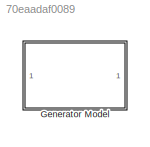
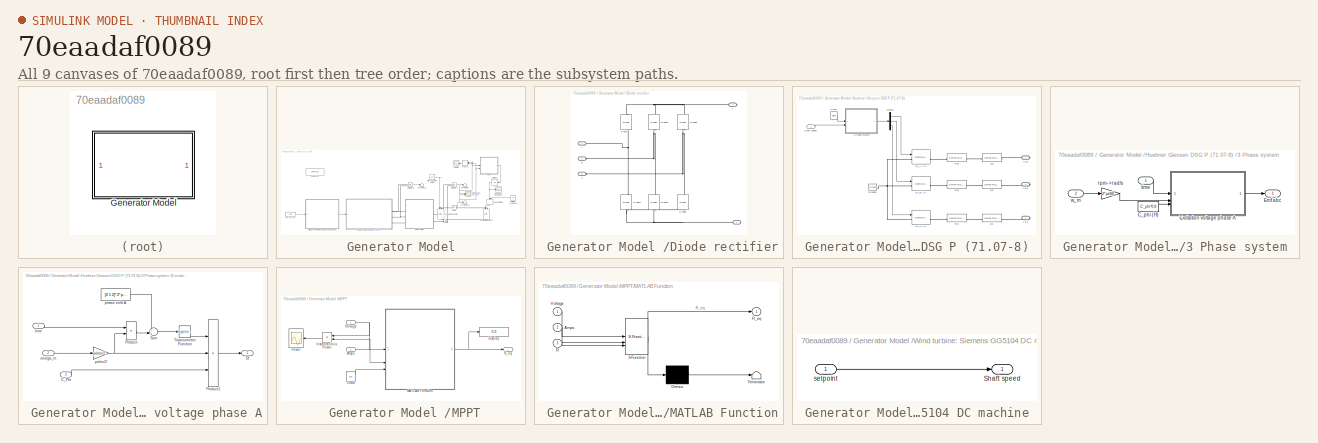
[diagram: thumbnail index - all 9 canvases of the model, root first then tree order]
MODEL slx_70eaadaf0089
KIND model
CONFIG AbsTol = auto
CONFIG EnableMultiTasking = on
CONFIG FixedStep = 1e-6
CONFIG InitFcn = Rs=0.42;                \nLs=0.96e-3;            \nC_phi=92.1952e-3;     \npoles=8;               \nRload=15;
CONFIG MaxStep = 1e-7
CONFIG MinStep = auto
CONFIG RelTol = 1e-5
CONFIG SampleTimeConstraint = Unconstrained
CONFIG SolverName = ode45
CONFIG StartTime = 0.0
CONFIG StopTime = 0.5
WORKSPACE source: mxarray member
WORKSPACE D: Simulink.Parameter (value not decoded)
WORKSPACE Power_previous: Simulink.Parameter (value not decoded)
WORKSPACE R_eq: Simulink.Parameter (value not decoded)
WORKSPACE direction: Simulink.Parameter (value not decoded)
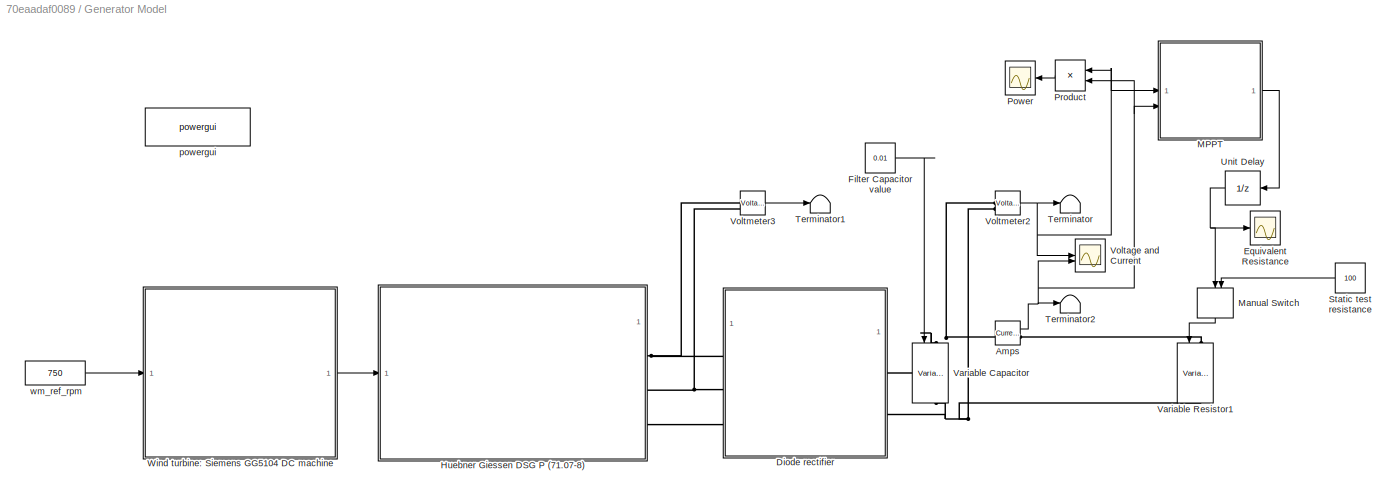
BLOCK [SubSystem]  Generator Model 
BLOCK [Reference]  Generator Model /Amps  REF=spsCurrentMeasurementLib/Current Measurement
  LibrarySourceBlock = sps_lib/Sensors and Measurements/Current Measurement
  SourceBlock = spsCurrentMeasurementLib/Current Measurement
  SourceType = Current Measurement
  UserDataPersistent = on
BLOCK [SubSystem]  Generator Model /Diode rectifier
BLOCK [PMIOPort]  Generator Model /Diode rectifier/+
  NameLocation = top
  Port = 2
  Side = Right
BLOCK [PMIOPort]  Generator Model /Diode rectifier/-
  NameLocation = top
  Port = 4
  Side = Right
BLOCK [PMIOPort]  Generator Model /Diode rectifier/A
  Side = Left
BLOCK [PMIOPort]  Generator Model /Diode rectifier/B
  Port = 3
  Side = Left
BLOCK [PMIOPort]  Generator Model /Diode rectifier/C
  Port = 5
  Side = Left
BLOCK [Reference]  Generator Model /Diode rectifier/Diode  REF=spsDiodeLib/Diode
  LibrarySourceBlock = sps_lib/Power Electronics/Diode
  NameLocation = right
  SourceBlock = spsDiodeLib/Diode
  SourceType = Diode
BLOCK [Reference]  Generator Model /Diode rectifier/Diode1  REF=spsDiodeLib/Diode
  LibrarySourceBlock = sps_lib/Power Electronics/Diode
  NameLocation = right
  SourceBlock = spsDiodeLib/Diode
  SourceType = Diode
BLOCK [Reference]  Generator Model /Diode rectifier/Diode2  REF=spsDiodeLib/Diode
  LibrarySourceBlock = sps_lib/Power Electronics/Diode
  NameLocation = right
  SourceBlock = spsDiodeLib/Diode
  SourceType = Diode
BLOCK [Reference]  Generator Model /Diode rectifier/Diode3  REF=spsDiodeLib/Diode
  LibrarySourceBlock = sps_lib/Power Electronics/Diode
  NameLocation = right
  SourceBlock = spsDiodeLib/Diode
  SourceType = Diode
BLOCK [Reference]  Generator Model /Diode rectifier/Diode4  REF=spsDiodeLib/Diode
  LibrarySourceBlock = sps_lib/Power Electronics/Diode
  NameLocation = right
  SourceBlock = spsDiodeLib/Diode
  SourceType = Diode
BLOCK [Reference]  Generator Model /Diode rectifier/Diode5  REF=spsDiodeLib/Diode
  LibrarySourceBlock = sps_lib/Power Electronics/Diode
  NameLocation = right
  SourceBlock = spsDiodeLib/Diode
  SourceType = Diode
BLOCK [Scope]  Generator Model /Equivalent Resistance
  Floating = off
  NumInputPorts = 1
  ScopeSpecificationString = Simulink.scopes.TimeScopeBlockCfg('CurrentConfiguration', extmgr.ConfigurationSet(extmgr.Configuration('Core','General UI',true),extmgr.Configuration('Core','Source UI',true),extmgr.Configuration('Sources','WiredSimulink',true),extmgr.Configuration('Visuals','Time Domain',true,'SerializedDisplays',{struct('MinYLimReal','-3.59637','MaxYLimReal','100','YLabelReal','','MinYLimMag','0.00000','MaxYLimM...<+1398ch>
BLOCK [Constant]  Generator Model /Filter Capacitor value
  Value = 0.01
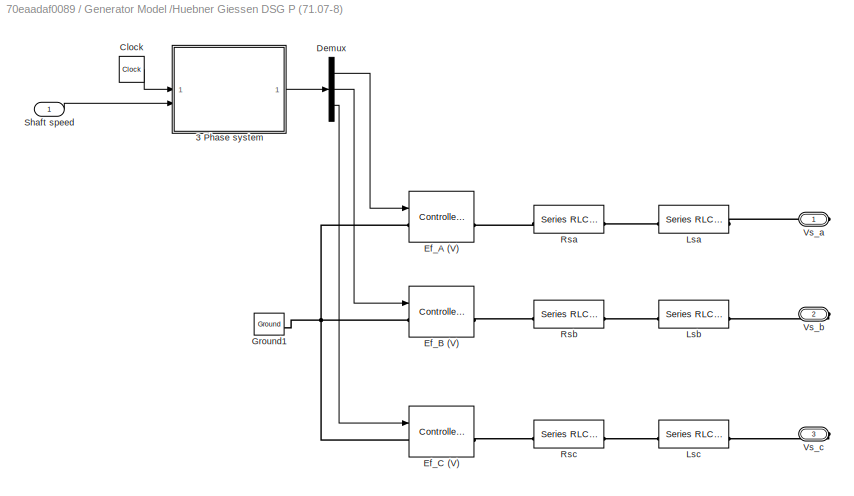
BLOCK [SubSystem]  Generator Model /Huebner Giessen DSG P (71.07-8) 
BLOCK [SubSystem]  Generator Model /Huebner Giessen DSG P (71.07-8) /3 Phase system 
BLOCK [Constant]  Generator Model /Huebner Giessen DSG P (71.07-8) /3 Phase system /C_phi (H)
  Value = C_phi*0.8
  VectorParams1D = off
BLOCK [Outport]  Generator Model /Huebner Giessen DSG P (71.07-8) /3 Phase system /Emf abc 
BLOCK [SubSystem]  Generator Model /Huebner Giessen DSG P (71.07-8) /3 Phase system /Excitation voltage phase A
BLOCK [Inport]  Generator Model /Huebner Giessen DSG P (71.07-8) /3 Phase system /Excitation voltage phase A/C_Phi
  Port = 3
BLOCK [Outport]  Generator Model /Huebner Giessen DSG P (71.07-8) /3 Phase system /Excitation voltage phase A/Ef
BLOCK [Product]  Generator Model /Huebner Giessen DSG P (71.07-8) /3 Phase system /Excitation voltage phase A/Product
  RndMeth = Zero
BLOCK [Product]  Generator Model /Huebner Giessen DSG P (71.07-8) /3 Phase system /Excitation voltage phase A/Product1
  Inputs = 3
  RndMeth = Zero
BLOCK [Sum]  Generator Model /Huebner Giessen DSG P (71.07-8) /3 Phase system /Excitation voltage phase A/Sum
  Inputs = ++|
BLOCK [Trigonometry]  Generator Model /Huebner Giessen DSG P (71.07-8) /3 Phase system /Excitation voltage phase A/Trigonometric Function
BLOCK [Inport]  Generator Model /Huebner Giessen DSG P (71.07-8) /3 Phase system /Excitation voltage phase A/omega_m
  Port = 2
BLOCK [Constant]  Generator Model /Huebner Giessen DSG P (71.07-8) /3 Phase system /Excitation voltage phase A/phase shift A
  Value = [0 1 2]*2*pi/3
BLOCK [Gain]  Generator Model /Huebner Giessen DSG P (71.07-8) /3 Phase system /Excitation voltage phase A/poles//2
  Gain = poles/2
BLOCK [Inport]  Generator Model /Huebner Giessen DSG P (71.07-8) /3 Phase system /Excitation voltage phase A/time
BLOCK [Gain]  Generator Model /Huebner Giessen DSG P (71.07-8) /3 Phase system /rpm->rad//s
  Gain = 2*pi/60
BLOCK [Inport]  Generator Model /Huebner Giessen DSG P (71.07-8) /3 Phase system /time
BLOCK [Inport]  Generator Model /Huebner Giessen DSG P (71.07-8) /3 Phase system /w_m
  Port = 2
BLOCK [Clock]  Generator Model /Huebner Giessen DSG P (71.07-8) /Clock
BLOCK [Demux]  Generator Model /Huebner Giessen DSG P (71.07-8) /Demux
  Outputs = 3
BLOCK [Reference]  Generator Model /Huebner Giessen DSG P (71.07-8) /Ef_A (V)  REF=spsControlledVoltageSourceLib/Controlled Voltage Source
  LibrarySourceBlock = sps_lib/Sources/Controlled Voltage Source
  SourceBlock = spsControlledVoltageSourceLib/Controlled Voltage Source
  SourceType = Controlled Voltage Source
BLOCK [Reference]  Generator Model /Huebner Giessen DSG P (71.07-8) /Ef_B (V)  REF=spsControlledVoltageSourceLib/Controlled Voltage Source
  LibrarySourceBlock = sps_lib/Sources/Controlled Voltage Source
  SourceBlock = spsControlledVoltageSourceLib/Controlled Voltage Source
  SourceType = Controlled Voltage Source
BLOCK [Reference]  Generator Model /Huebner Giessen DSG P (71.07-8) /Ef_C (V)  REF=spsControlledVoltageSourceLib/Controlled Voltage Source
  LibrarySourceBlock = sps_lib/Sources/Controlled Voltage Source
  SourceBlock = spsControlledVoltageSourceLib/Controlled Voltage Source
  SourceType = Controlled Voltage Source
BLOCK [Reference]  Generator Model /Huebner Giessen DSG P (71.07-8) /Ground1  REF=spsGroundLib/Ground
  LibrarySourceBlock = sps_lib/Utilities/Ground
  SourceBlock = spsGroundLib/Ground
  SourceType = Ground
BLOCK [Reference]  Generator Model /Huebner Giessen DSG P (71.07-8) /Lsa  REF=spsSeriesRLCBranchLib/Series RLC Branch
  LibrarySourceBlock = sps_lib/Passives/Series RLC Branch
  SourceBlock = spsSeriesRLCBranchLib/Series RLC Branch
  SourceType = Series RLC Branch
BLOCK [Reference]  Generator Model /Huebner Giessen DSG P (71.07-8) /Lsb  REF=spsSeriesRLCBranchLib/Series RLC Branch
  LibrarySourceBlock = sps_lib/Passives/Series RLC Branch
  SourceBlock = spsSeriesRLCBranchLib/Series RLC Branch
  SourceType = Series RLC Branch
BLOCK [Reference]  Generator Model /Huebner Giessen DSG P (71.07-8) /Lsc  REF=spsSeriesRLCBranchLib/Series RLC Branch
  LibrarySourceBlock = sps_lib/Passives/Series RLC Branch
  SourceBlock = spsSeriesRLCBranchLib/Series RLC Branch
  SourceType = Series RLC Branch
BLOCK [Reference]  Generator Model /Huebner Giessen DSG P (71.07-8) /Rsa  REF=spsSeriesRLCBranchLib/Series RLC Branch
  LibrarySourceBlock = sps_lib/Passives/Series RLC Branch
  SourceBlock = spsSeriesRLCBranchLib/Series RLC Branch
  SourceType = Series RLC Branch
BLOCK [Reference]  Generator Model /Huebner Giessen DSG P (71.07-8) /Rsb  REF=spsSeriesRLCBranchLib/Series RLC Branch
  LibrarySourceBlock = sps_lib/Passives/Series RLC Branch
  SourceBlock = spsSeriesRLCBranchLib/Series RLC Branch
  SourceType = Series RLC Branch
BLOCK [Reference]  Generator Model /Huebner Giessen DSG P (71.07-8) /Rsc  REF=spsSeriesRLCBranchLib/Series RLC Branch
  LibrarySourceBlock = sps_lib/Passives/Series RLC Branch
  SourceBlock = spsSeriesRLCBranchLib/Series RLC Branch
  SourceType = Series RLC Branch
BLOCK [Inport]  Generator Model /Huebner Giessen DSG P (71.07-8) /Shaft speed
BLOCK [PMIOPort]  Generator Model /Huebner Giessen DSG P (71.07-8) /Vs_a
  Side = Right
BLOCK [PMIOPort]  Generator Model /Huebner Giessen DSG P (71.07-8) /Vs_b
  Port = 2
  Side = Right
BLOCK [PMIOPort]  Generator Model /Huebner Giessen DSG P (71.07-8) /Vs_c
  Port = 3
  Side = Right
BLOCK [SubSystem]  Generator Model /MPPT
BLOCK [Inport]  Generator Model /MPPT/Amps
  Port = 2
BLOCK [Display]  Generator Model /MPPT/Display
  Decimation = 1
BLOCK [Product]  Generator Model /MPPT/Instantanious Power
  NameLocation = top
BLOCK [Constant]  Generator Model /MPPT/Load
  Value = 100
BLOCK [SubSystem]  Generator Model /MPPT/MATLAB Function
  ErrorFcn = Stateflow.Translate.translate
  LibrarySourceBlock = simulink/User-Defined\nFunctions/MATLAB Function
  PermitHierarchicalResolution = ExplicitOnly
  SFBlockType = MATLAB Function
  SystemSampleTime = 0.0001
  TreatAsAtomicUnit = on
BLOCK [Demux]  Generator Model /MPPT/MATLAB Function/ Demux 
  Outputs = 1
BLOCK [S-Function]  Generator Model /MPPT/MATLAB Function/ SFunction 
  EnableBusSupport = on
  FunctionName = sf_sfun
  PortCounts = [3 2]
  SFcnIsStateOwnerBlock = off
  SFunctionDeploymentMode = off
  Tag = Stateflow S-Function 2
BLOCK [Terminator]  Generator Model /MPPT/MATLAB Function/ Terminator 
BLOCK [Inport]  Generator Model /MPPT/MATLAB Function/Amps
  Port = 2
BLOCK [Inport]  Generator Model /MPPT/MATLAB Function/R
  Port = 3
BLOCK [Outport]  Generator Model /MPPT/MATLAB Function/R_eq
BLOCK [Inport]  Generator Model /MPPT/MATLAB Function/Voltage
BLOCK [Scope]  Generator Model /MPPT/Power
  Floating = off
  NameLocation = top
  NumInputPorts = 1
  ScopeSpecificationString = Simulink.scopes.TimeScopeBlockCfg('CurrentConfiguration', extmgr.ConfigurationSet(extmgr.Configuration('Core','General UI',true),extmgr.Configuration('Core','Source UI',true),extmgr.Configuration('Sources','WiredSimulink',true,'DataLoggingVariableName','ScopeData1'),extmgr.Configuration('Visuals','Time Domain',true,'SerializedDisplays',{struct('MinYLimReal','-52.45852','MaxYLimReal','472.12667','Y...<+1462ch>
BLOCK [Outport]  Generator Model /MPPT/R_eq
BLOCK [Inport]  Generator Model /MPPT/Voltage
BLOCK [ManualSwitch]  Generator Model /Manual Switch
  NameLocation = left
BLOCK [Scope]  Generator Model /Power
  Floating = off
  NameLocation = top
  NumInputPorts = 1
  ScopeSpecificationString = Simulink.scopes.TimeScopeBlockCfg('CurrentConfiguration', extmgr.ConfigurationSet(extmgr.Configuration('Core','General UI',true),extmgr.Configuration('Core','Source UI',true),extmgr.Configuration('Sources','WiredSimulink',true,'DataLoggingVariableName','ScopeData1'),extmgr.Configuration('Visuals','Time Domain',true,'SerializedDisplays',{struct('MinYLimReal','-3.59637','MaxYLimReal','400','YLabelRe...<+1434ch>
BLOCK [Product]  Generator Model /Product
  NameLocation = top
BLOCK [Constant]  Generator Model /Static test resistance
  Value = 100
BLOCK [Terminator]  Generator Model /Terminator
BLOCK [Terminator]  Generator Model /Terminator1
BLOCK [Terminator]  Generator Model /Terminator2
BLOCK [UnitDelay]  Generator Model /Unit Delay
  HasFrameUpgradeWarning = on
  InitialCondition = 100
  NameLocation = top
  SampleTime = 0.0000001
BLOCK [Reference]  Generator Model /Variable Capacitor  REF=spsVariableCapacitorLib/Variable Capacitor
  LibrarySourceBlock = sps_lib/Passives/Variable Capacitor
  NameLocation = left
  SourceBlock = spsVariableCapacitorLib/Variable Capacitor
  SourceType = Variable Capacitor
BLOCK [Reference]  Generator Model /Variable Resistor1  REF=spsVariableResistorLib/Variable Resistor
  LibrarySourceBlock = sps_lib/Passives/Variable Resistor
  NameLocation = left
  SourceBlock = spsVariableResistorLib/Variable Resistor
  SourceType = Variable Resistor
BLOCK [Scope]  Generator Model /Voltage and Current
  Floating = off
  NumInputPorts = 2
  ScopeSpecificationString = Simulink.scopes.TimeScopeBlockCfg('CurrentConfiguration', extmgr.ConfigurationSet(extmgr.Configuration('Core','General UI',true),extmgr.Configuration('Core','Source UI',true),extmgr.Configuration('Sources','WiredSimulink',true),extmgr.Configuration('Visuals','Time Domain',true,'SerializedDisplays',{struct('MinYLimReal','-4.84101','MaxYLimReal','44.12403','YLabelReal','','MinYLimMag','0.00000','Max...<+1415ch>
BLOCK [Reference]  Generator Model /Voltmeter2  REF=spsVoltageMeasurementLib/Voltage Measurement
  LibrarySourceBlock = sps_lib/Sensors and Measurements/Voltage Measurement
  SourceBlock = spsVoltageMeasurementLib/Voltage Measurement
  SourceType = Voltage Measurement
  UserDataPersistent = on
BLOCK [Reference]  Generator Model /Voltmeter3  REF=spsVoltageMeasurementLib/Voltage Measurement
  LibrarySourceBlock = sps_lib/Sensors and Measurements/Voltage Measurement
  SourceBlock = spsVoltageMeasurementLib/Voltage Measurement
  SourceType = Voltage Measurement
  UserDataPersistent = on
BLOCK [SubSystem]  Generator Model /Wind turbine: Siemens GG5104 DC machine 
BLOCK [Outport]  Generator Model /Wind turbine: Siemens GG5104 DC machine /Shaft speed
BLOCK [Inport]  Generator Model /Wind turbine: Siemens GG5104 DC machine /setpoint
BLOCK [Reference]  Generator Model /powergui  REF=spspowerguiLib/powergui
  Priority = 1
  SourceBlock = spspowerguiLib/powergui
  SourceType = PSB option menu block
BLOCK [Constant]  Generator Model /wm_ref_rpm
  Value = 750
NET  Generator Model /Amps:1 ->  Generator Model /MPPT:2,  Generator Model /Product:2,  Generator Model /Terminator2:1,  Generator Model /Voltage and Current:2
LINE  Generator Model /Filter Capacitor value:1 ->  Generator Model /Variable Capacitor:1
LINE  Generator Model /Huebner Giessen DSG P (71.07-8) /3 Phase system /C_phi (H):1 ->  Generator Model /Huebner Giessen DSG P (71.07-8) /3 Phase system /Excitation voltage phase A:3
LINE  Generator Model /Huebner Giessen DSG P (71.07-8) /3 Phase system /Excitation voltage phase A/C_Phi:1 ->  Generator Model /Huebner Giessen DSG P (71.07-8) /3 Phase system /Excitation voltage phase A/Product1:3
LINE  Generator Model /Huebner Giessen DSG P (71.07-8) /3 Phase system /Excitation voltage phase A/Product1:1 ->  Generator Model /Huebner Giessen DSG P (71.07-8) /3 Phase system /Excitation voltage phase A/Ef:1
LINE  Generator Model /Huebner Giessen DSG P (71.07-8) /3 Phase system /Excitation voltage phase A/Product:1 ->  Generator Model /Huebner Giessen DSG P (71.07-8) /3 Phase system /Excitation voltage phase A/Sum:2
LINE  Generator Model /Huebner Giessen DSG P (71.07-8) /3 Phase system /Excitation voltage phase A/Sum:1 ->  Generator Model /Huebner Giessen DSG P (71.07-8) /3 Phase system /Excitation voltage phase A/Trigonometric Function:1
LINE  Generator Model /Huebner Giessen DSG P (71.07-8) /3 Phase system /Excitation voltage phase A/Trigonometric Function:1 ->  Generator Model /Huebner Giessen DSG P (71.07-8) /3 Phase system /Excitation voltage phase A/Product1:1
LINE  Generator Model /Huebner Giessen DSG P (71.07-8) /3 Phase system /Excitation voltage phase A/omega_m:1 ->  Generator Model /Huebner Giessen DSG P (71.07-8) /3 Phase system /Excitation voltage phase A/poles//2:1
LINE  Generator Model /Huebner Giessen DSG P (71.07-8) /3 Phase system /Excitation voltage phase A/phase shift A:1 ->  Generator Model /Huebner Giessen DSG P (71.07-8) /3 Phase system /Excitation voltage phase A/Sum:1
NET  Generator Model /Huebner Giessen DSG P (71.07-8) /3 Phase system /Excitation voltage phase A/poles//2:1 ->  Generator Model /Huebner Giessen DSG P (71.07-8) /3 Phase system /Excitation voltage phase A/Product1:2,  Generator Model /Huebner Giessen DSG P (71.07-8) /3 Phase system /Excitation voltage phase A/Product:2
LINE  Generator Model /Huebner Giessen DSG P (71.07-8) /3 Phase system /Excitation voltage phase A/time:1 ->  Generator Model /Huebner Giessen DSG P (71.07-8) /3 Phase system /Excitation voltage phase A/Product:1
LINE  Generator Model /Huebner Giessen DSG P (71.07-8) /3 Phase system /Excitation voltage phase A:1 ->  Generator Model /Huebner Giessen DSG P (71.07-8) /3 Phase system /Emf abc :1
LINE  Generator Model /Huebner Giessen DSG P (71.07-8) /3 Phase system /rpm->rad//s:1 ->  Generator Model /Huebner Giessen DSG P (71.07-8) /3 Phase system /Excitation voltage phase A:2
LINE  Generator Model /Huebner Giessen DSG P (71.07-8) /3 Phase system /time:1 ->  Generator Model /Huebner Giessen DSG P (71.07-8) /3 Phase system /Excitation voltage phase A:1
LINE  Generator Model /Huebner Giessen DSG P (71.07-8) /3 Phase system /w_m:1 ->  Generator Model /Huebner Giessen DSG P (71.07-8) /3 Phase system /rpm->rad//s:1
LINE  Generator Model /Huebner Giessen DSG P (71.07-8) /3 Phase system :1 ->  Generator Model /Huebner Giessen DSG P (71.07-8) /Demux:1
LINE  Generator Model /Huebner Giessen DSG P (71.07-8) /Clock:1 ->  Generator Model /Huebner Giessen DSG P (71.07-8) /3 Phase system :1
LINE  Generator Model /Huebner Giessen DSG P (71.07-8) /Demux:1 ->  Generator Model /Huebner Giessen DSG P (71.07-8) /Ef_A (V):1
LINE  Generator Model /Huebner Giessen DSG P (71.07-8) /Demux:2 ->  Generator Model /Huebner Giessen DSG P (71.07-8) /Ef_B (V):1
LINE  Generator Model /Huebner Giessen DSG P (71.07-8) /Demux:3 ->  Generator Model /Huebner Giessen DSG P (71.07-8) /Ef_C (V):1
LINE  Generator Model /Huebner Giessen DSG P (71.07-8) /Shaft speed:1 ->  Generator Model /Huebner Giessen DSG P (71.07-8) /3 Phase system :2
NET  Generator Model /MPPT/Amps:1 ->  Generator Model /MPPT/Instantanious Power:2,  Generator Model /MPPT/MATLAB Function:2
LINE  Generator Model /MPPT/Instantanious Power:1 ->  Generator Model /MPPT/Power:1
LINE  Generator Model /MPPT/Load:1 ->  Generator Model /MPPT/MATLAB Function:3
NET  Generator Model /MPPT/MATLAB Function:1 ->  Generator Model /MPPT/Display:1,  Generator Model /MPPT/R_eq:1
NET  Generator Model /MPPT/Voltage:1 ->  Generator Model /MPPT/Instantanious Power:1,  Generator Model /MPPT/MATLAB Function:1
LINE  Generator Model /MPPT:1 ->  Generator Model /Unit Delay:1
LINE  Generator Model /Manual Switch:1 ->  Generator Model /Variable Resistor1:1
LINE  Generator Model /Product:1 ->  Generator Model /Power:1
LINE  Generator Model /Static test resistance:1 ->  Generator Model /Manual Switch:2
NET  Generator Model /Unit Delay:1 ->  Generator Model /Equivalent Resistance:1,  Generator Model /Manual Switch:1
NET  Generator Model /Voltmeter2:1 ->  Generator Model /MPPT:1,  Generator Model /Product:1,  Generator Model /Terminator:1,  Generator Model /Voltage and Current:1
LINE  Generator Model /Voltmeter3:1 ->  Generator Model /Terminator1:1
LINE  Generator Model /Wind turbine: Siemens GG5104 DC machine /setpoint:1 ->  Generator Model /Wind turbine: Siemens GG5104 DC machine /Shaft speed:1
LINE  Generator Model /Wind turbine: Siemens GG5104 DC machine :1 ->  Generator Model /Huebner Giessen DSG P (71.07-8) :1
LINE  Generator Model /wm_ref_rpm:1 ->  Generator Model /Wind turbine: Siemens GG5104 DC machine :1
PNET net1:  Generator Model /Amps:LConn1 --  Generator Model /Diode rectifier:RConn1 --  Generator Model /Variable Capacitor:LConn1 --  Generator Model /Voltmeter2:LConn1
PLINE  Generator Model /Amps:RConn1 --  Generator Model /Variable Resistor1:LConn1
PNET net2:  Generator Model /Diode rectifier/+:RConn1 --  Generator Model /Diode rectifier/Diode1:RConn1 --  Generator Model /Diode rectifier/Diode2:RConn1 --  Generator Model /Diode rectifier/Diode:RConn1
PNET net3:  Generator Model /Diode rectifier/-:RConn1 --  Generator Model /Diode rectifier/Diode3:LConn1 --  Generator Model /Diode rectifier/Diode4:LConn1 --  Generator Model /Diode rectifier/Diode5:LConn1
PNET net4:  Generator Model /Diode rectifier/A:RConn1 --  Generator Model /Diode rectifier/Diode3:RConn1 --  Generator Model /Diode rectifier/Diode:LConn1
PNET net5:  Generator Model /Diode rectifier/B:RConn1 --  Generator Model /Diode rectifier/Diode1:LConn1 --  Generator Model /Diode rectifier/Diode4:RConn1
PNET net6:  Generator Model /Diode rectifier/C:RConn1 --  Generator Model /Diode rectifier/Diode2:LConn1 --  Generator Model /Diode rectifier/Diode5:RConn1
PNET net7:  Generator Model /Diode rectifier:LConn1 --  Generator Model /Huebner Giessen DSG P (71.07-8) :RConn1 --  Generator Model /Voltmeter3:LConn1
PNET net8:  Generator Model /Diode rectifier:LConn2 --  Generator Model /Huebner Giessen DSG P (71.07-8) :RConn2 --  Generator Model /Voltmeter3:LConn2
PLINE  Generator Model /Diode rectifier:LConn3 --  Generator Model /Huebner Giessen DSG P (71.07-8) :RConn3
PNET net9:  Generator Model /Diode rectifier:RConn2 --  Generator Model /Variable Capacitor:RConn1 --  Generator Model /Variable Resistor1:RConn1 --  Generator Model /Voltmeter2:LConn2
PNET net10:  Generator Model /Huebner Giessen DSG P (71.07-8) /Ef_A (V):LConn1 --  Generator Model /Huebner Giessen DSG P (71.07-8) /Ef_B (V):LConn1 --  Generator Model /Huebner Giessen DSG P (71.07-8) /Ef_C (V):LConn1 --  Generator Model /Huebner Giessen DSG P (71.07-8) /Ground1:LConn1
PLINE  Generator Model /Huebner Giessen DSG P (71.07-8) /Ef_A (V):RConn1 --  Generator Model /Huebner Giessen DSG P (71.07-8) /Rsa:LConn1
PLINE  Generator Model /Huebner Giessen DSG P (71.07-8) /Ef_B (V):RConn1 --  Generator Model /Huebner Giessen DSG P (71.07-8) /Rsb:LConn1
PLINE  Generator Model /Huebner Giessen DSG P (71.07-8) /Ef_C (V):RConn1 --  Generator Model /Huebner Giessen DSG P (71.07-8) /Rsc:LConn1
PLINE  Generator Model /Huebner Giessen DSG P (71.07-8) /Lsa:LConn1 --  Generator Model /Huebner Giessen DSG P (71.07-8) /Rsa:RConn1
PLINE  Generator Model /Huebner Giessen DSG P (71.07-8) /Lsa:RConn1 --  Generator Model /Huebner Giessen DSG P (71.07-8) /Vs_a:RConn1
PLINE  Generator Model /Huebner Giessen DSG P (71.07-8) /Lsb:LConn1 --  Generator Model /Huebner Giessen DSG P (71.07-8) /Rsb:RConn1
PLINE  Generator Model /Huebner Giessen DSG P (71.07-8) /Lsb:RConn1 --  Generator Model /Huebner Giessen DSG P (71.07-8) /Vs_b:RConn1
PLINE  Generator Model /Huebner Giessen DSG P (71.07-8) /Lsc:LConn1 --  Generator Model /Huebner Giessen DSG P (71.07-8) /Rsc:RConn1
PLINE  Generator Model /Huebner Giessen DSG P (71.07-8) /Lsc:RConn1 --  Generator Model /Huebner Giessen DSG P (71.07-8) /Vs_c:RConn1
note: NET lines group one-source signal fan-out (src -> all destinations, sorted); 1:1 wires keep LINE; PNET lines group multi-terminal physical nets as a canonical sorted terminal list (undirected conserving connections); 2-terminal nets keep the pairwise PLINE form
CHART  Generator Model

/MPPT/MATLAB Function states=1 transitions=1
  STATE_LABEL 'eML_blk_kernel()'
  STATE_LABEL 'SCRIPT:\nfunction R_eq  = fcn(Voltage, Amps, R)\n\npersistent D_previous Power_previous direction_previous\nif isempty(D_previous)\n    D_previous = 0.9;\n    Power_previous = 0;\n    direction_previous = 0;\nend\n\nPower = Voltage * Amps;\n\nif Power < Power_previous\n    if direction_previous == 1\n        direction = 0;\n    else\n        direction = 1;\n    end\nelse \n    direction = direction_previous;\nend\n\nD ...<+176ch>'
CHART  states=0 transitions=0
